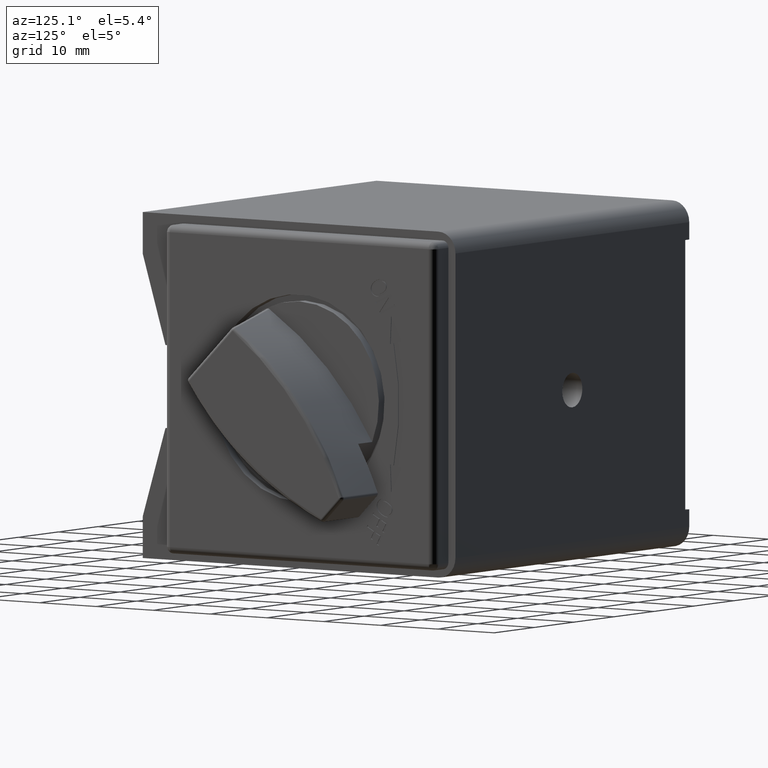
[diagram: clean part render]
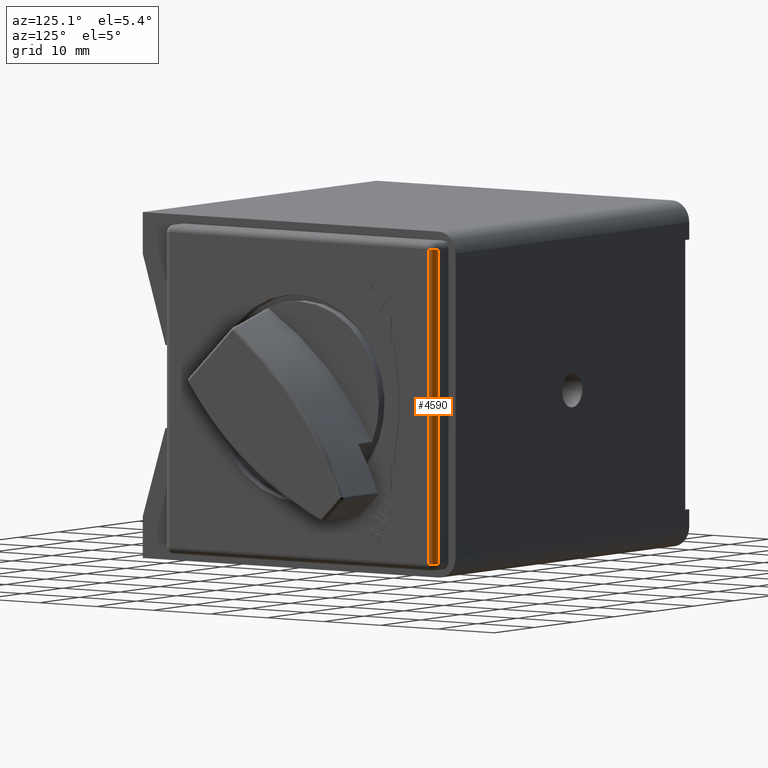
[diagram: same view with one face highlighted and labeled with its STEP entity id]
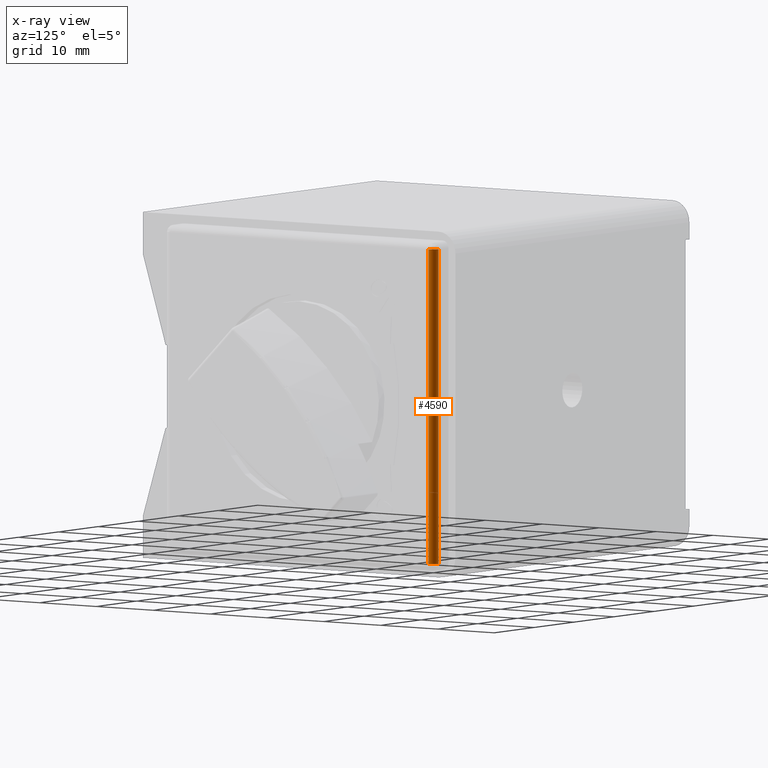
[diagram: x-ray of the same camera — body ghosted, the highlighted face saturated]
A machine part, auxiliary view. The second image highlights one B-rep face of the part: STEP entity #4590.
The next image is the same camera in x-ray: the body ghosted, the highlighted face saturated — about 0% of this face is hidden behind the body in this view.
In plain terms, the highlighted cylindrical surface (edge-blend (fillet) strip) has radius 1 mm, axis along (-0, 0, -1).
Its self-contained STEP definition (entity closure, byte-faithful):
#35 = CARTESIAN_POINT ( 'NONE',  ( 31.75000000000000711, 25.24999999999999645, -22.74999999999999289 ) ) ;
#204 = CARTESIAN_POINT ( 'NONE',  ( 32.75000000000000711, 25.24999999999999645, 22.75000000000000355 ) ) ;
#333 = CIRCLE ( 'NONE', #2618, 1.000000000000000888 ) ;
#364 = VERTEX_POINT ( 'NONE', #2570 ) ;
#389 = CARTESIAN_POINT ( 'NONE',  ( 32.75000000000000711, 25.24999999999999645, -5.001481684947869569E-15 ) ) ;
#808 = DIRECTION ( 'NONE',  ( 1.460819769243627131E-16, -0.000000000000000000, 1.000000000000000000 ) ) ;
#824 = DIRECTION ( 'NONE',  ( -1.460819769243627131E-16, 0.000000000000000000, -1.000000000000000000 ) ) ;
#929 = LINE ( 'NONE', #1358, #1487 ) ;
#980 = DIRECTION ( 'NONE',  ( -1.460819769243627131E-16, 0.000000000000000000, -1.000000000000000000 ) ) ;
#1034 = DIRECTION ( 'NONE',  ( -1.000000000000000000, 0.000000000000000000, 0.000000000000000000 ) ) ;
#1091 = ORIENTED_EDGE ( 'NONE', *, *, #4154, .T. ) ;
#1106 = VERTEX_POINT ( 'NONE', #204 ) ;
#1255 = LINE ( 'NONE', #389, #2723 ) ;
#1358 = CARTESIAN_POINT ( 'NONE',  ( 31.75000000000000711, 26.25000000000000000, 23.75000000000000355 ) ) ;
#1487 = VECTOR ( 'NONE', #3629, 1000.000000000000000 ) ;
#1758 = DIRECTION ( 'NONE',  ( -1.460819769243627131E-16, 0.000000000000000000, -1.000000000000000000 ) ) ;
#1780 = EDGE_CURVE ( 'NONE', #4308, #364, #2208, .T. ) ;
#2136 = CARTESIAN_POINT ( 'NONE',  ( 32.75000000000000711, 25.24999999999999645, -22.74999999999999289 ) ) ;
#2150 = CARTESIAN_POINT ( 'NONE',  ( 31.75000000000000711, 26.25000000000000000, 22.75000000000000355 ) ) ;
#2169 = CARTESIAN_POINT ( 'NONE',  ( 31.75000000000000711, 25.24999999999999645, -4.855399708023506659E-15 ) ) ;
#2208 = CIRCLE ( 'NONE', #2876, 1.000000000000000888 ) ;
#2235 = CARTESIAN_POINT ( 'NONE',  ( 31.75000000000000711, 25.24999999999999645, 22.75000000000000355 ) ) ;
#2432 = VERTEX_POINT ( 'NONE', #2150 ) ;
#2449 = EDGE_CURVE ( 'NONE', #2432, #1106, #333, .T. ) ;
#2561 = FACE_OUTER_BOUND ( 'NONE', #3332, .T. ) ;
#2570 = CARTESIAN_POINT ( 'NONE',  ( 31.75000000000000711, 26.25000000000000000, -22.74999999999999289 ) ) ;
#2618 = AXIS2_PLACEMENT_3D ( 'NONE', #2235, #980, #1034 ) ;
#2723 = VECTOR ( 'NONE', #824, 1000.000000000000000 ) ;
#2735 = DIRECTION ( 'NONE',  ( -1.000000000000000000, 0.000000000000000000, 0.000000000000000000 ) ) ;
#2876 = AXIS2_PLACEMENT_3D ( 'NONE', #35, #808, #2735 ) ;
#2975 = ORIENTED_EDGE ( 'NONE', *, *, #5057, .T. ) ;
#3332 = EDGE_LOOP ( 'NONE', ( #5036, #1091, #3806, #2975 ) ) ;
#3354 = AXIS2_PLACEMENT_3D ( 'NONE', #2169, #1758, #4067 ) ;
#3629 = DIRECTION ( 'NONE',  ( -0.000000000000000000, 0.000000000000000000, 1.000000000000000000 ) ) ;
#3806 = ORIENTED_EDGE ( 'NONE', *, *, #1780, .T. ) ;
#4067 = DIRECTION ( 'NONE',  ( -1.000000000000000000, 0.000000000000000000, 1.460819769243630335E-16 ) ) ;
#4118 = CYLINDRICAL_SURFACE ( 'NONE', #3354, 1.000000000000000888 ) ;
#4154 = EDGE_CURVE ( 'NONE', #1106, #4308, #1255, .T. ) ;
#4308 = VERTEX_POINT ( 'NONE', #2136 ) ;
#4590 = ADVANCED_FACE ( 'NONE', ( #2561 ), #4118, .T. ) ;
#5036 = ORIENTED_EDGE ( 'NONE', *, *, #2449, .T. ) ;
#5057 = EDGE_CURVE ( 'NONE', #364, #2432, #929, .T. ) ;